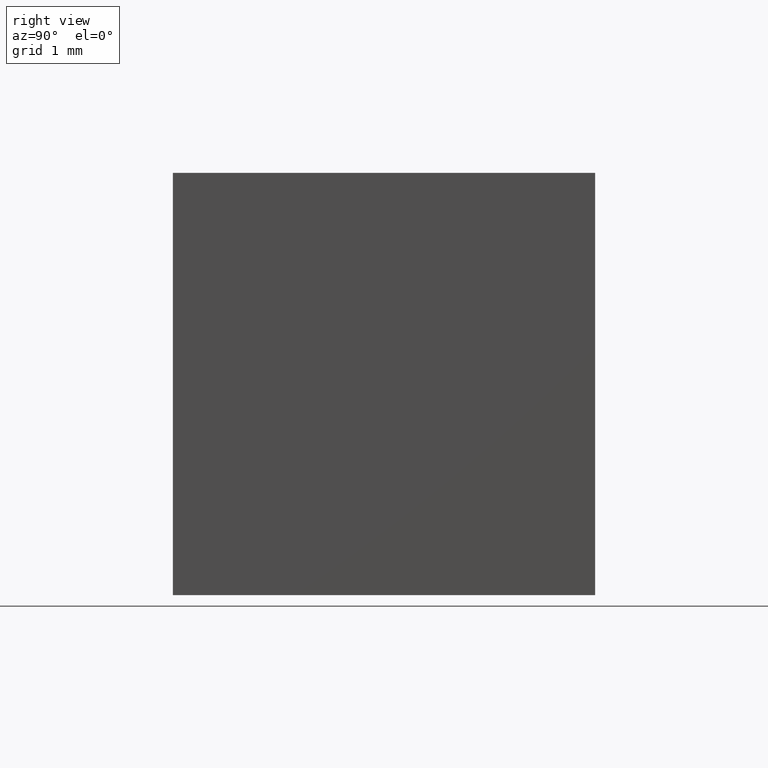
[diagram: clean part render]
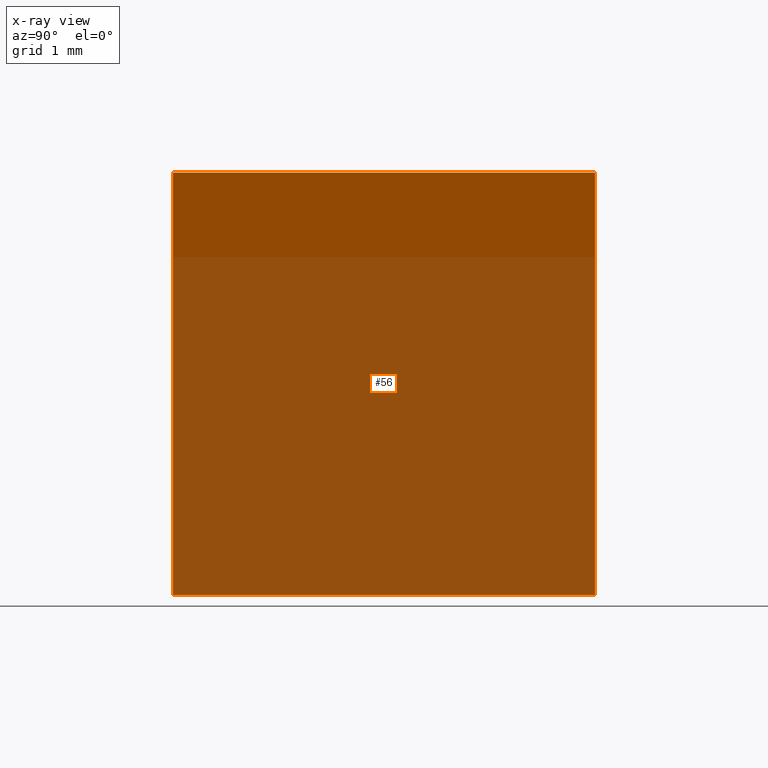
[diagram: x-ray — body ghosted, one internal face saturated and labeled with its STEP entity id]
A machine part, right view, then the same camera in x-ray: the body is ghosted and one INTERNAL B-rep face — a face not visible from any outside direction — is saturated and labeled: STEP entity #56.
In plain terms, the highlighted planar face has unit normal (0.7071, 0, -0.7071).
Its self-contained STEP definition (entity closure, byte-faithful):
#3 = EDGE_CURVE ( 'NONE', #253, #135, #205, .T. ) ;
#48 = CARTESIAN_POINT ( 'NONE',  ( 0.0000000000000000000, 0.0000000000000000000, 0.0000000000000000000 ) ) ;
#49 = DIRECTION ( 'NONE',  ( -0.7071067811865475700, 0.0000000000000000000, -0.7071067811865474600 ) ) ;
#52 = DIRECTION ( 'NONE',  ( -0.0000000000000000000, -1.000000000000000000, -0.0000000000000000000 ) ) ;
#56 = ADVANCED_FACE ( 'NONE', ( #273 ), #213, .F. ) ;
#71 = ORIENTED_EDGE ( 'NONE', *, *, #3, .T. ) ;
#72 = CARTESIAN_POINT ( 'NONE',  ( -5.000000000000000000, 0.0000000000000000000, -4.999999999999999100 ) ) ;
#73 = DIRECTION ( 'NONE',  ( 0.7071067811865475700, 0.0000000000000000000, 0.7071067811865474600 ) ) ;
#74 = DIRECTION ( 'NONE',  ( 0.7071067811865474600, 0.0000000000000000000, -0.7071067811865475700 ) ) ;
#75 = CARTESIAN_POINT ( 'NONE',  ( 0.0000000000000000000, 5.000000000000000000, 0.0000000000000000000 ) ) ;
#76 = DIRECTION ( 'NONE',  ( 0.7071067811865475700, 0.0000000000000000000, 0.7071067811865474600 ) ) ;
#77 = LINE ( 'NONE', #244, #90 ) ;
#90 = VECTOR ( 'NONE', #52, 1000.000000000000000 ) ;
#95 = AXIS2_PLACEMENT_3D ( 'NONE', #121, #74, #49 ) ;
#119 = CARTESIAN_POINT ( 'NONE',  ( -5.000000000000000000, 5.000000000000000000, -4.999999999999999100 ) ) ;
#121 = CARTESIAN_POINT ( 'NONE',  ( -5.000000000000000000, 5.000000000000000000, -4.999999999999999100 ) ) ;
#123 = DIRECTION ( 'NONE',  ( -0.0000000000000000000, -1.000000000000000000, -0.0000000000000000000 ) ) ;
#135 = VERTEX_POINT ( 'NONE', #241 ) ;
#143 = VECTOR ( 'NONE', #123, 1000.000000000000000 ) ;
#162 = LINE ( 'NONE', #119, #208 ) ;
#165 = VERTEX_POINT ( 'NONE', #75 ) ;
#177 = VERTEX_POINT ( 'NONE', #48 ) ;
#203 = VECTOR ( 'NONE', #76, 1000.000000000000000 ) ;
#205 = LINE ( 'NONE', #291, #143 ) ;
#207 = EDGE_CURVE ( 'NONE', #253, #165, #162, .T. ) ;
#208 = VECTOR ( 'NONE', #73, 1000.000000000000000 ) ;
#209 = ORIENTED_EDGE ( 'NONE', *, *, #207, .F. ) ;
#213 = PLANE ( 'NONE',  #95 ) ;
#237 = EDGE_LOOP ( 'NONE', ( #301, #260, #209, #71 ) ) ;
#238 = CARTESIAN_POINT ( 'NONE',  ( -5.000000000000000000, 5.000000000000000000, -4.999999999999999100 ) ) ;
#241 = CARTESIAN_POINT ( 'NONE',  ( -5.000000000000000000, 0.0000000000000000000, -4.999999999999999100 ) ) ;
#244 = CARTESIAN_POINT ( 'NONE',  ( 0.0000000000000000000, 5.000000000000000000, 0.0000000000000000000 ) ) ;
#253 = VERTEX_POINT ( 'NONE', #238 ) ;
#254 = EDGE_CURVE ( 'NONE', #135, #177, #279, .T. ) ;
#260 = ORIENTED_EDGE ( 'NONE', *, *, #278, .F. ) ;
#273 = FACE_OUTER_BOUND ( 'NONE', #237, .T. ) ;
#278 = EDGE_CURVE ( 'NONE', #165, #177, #77, .T. ) ;
#279 = LINE ( 'NONE', #72, #203 ) ;
#291 = CARTESIAN_POINT ( 'NONE',  ( -5.000000000000000000, 5.000000000000000000, -4.999999999999999100 ) ) ;
#301 = ORIENTED_EDGE ( 'NONE', *, *, #254, .T. ) ;